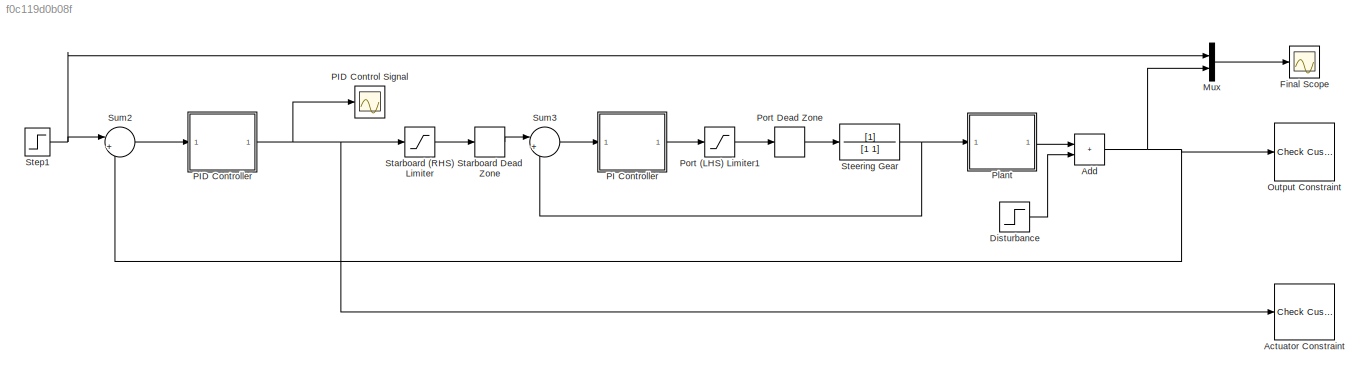
MODEL slx_f0c119d0b08f
KIND model
CONFIG AbsTol = auto
CONFIG EnableMultiTasking = off
CONFIG FixedStep = auto
CONFIG MaxStep = auto
CONFIG MinStep = auto
CONFIG RelTol = 1e-3
CONFIG SampleTimeConstraint = Unconstrained
CONFIG Solver = VariableStepAuto
CONFIG SolverName = VariableStepAuto
CONFIG StartTime = 0.0
CONFIG StopTime = 10.0
BLOCK [Reference] Actuator Constraint  REF=checkpacklib/Check Custom Bounds
  InstantiateOnLoad = on
  Ports = [1]
  SourceBlock = checkpacklib/Check Custom Bounds
  SourceProductBaseCode = CT,ID,MT,SO
  SourceType = Checks_CustomBounds
  StatePerturbationForJacobian = 1.0e-05
BLOCK [Sum] Add
  IconShape = rectangular
  Ports = [2, 1]
BLOCK [Step] Disturbance
BLOCK [Scope] Final Scope
  Floating = off
  NumInputPorts = 1
  Ports = [1]
  ScopeSpecificationString = Simulink.scopes.TimeScopeBlockCfg('CurrentConfiguration', extmgr.ConfigurationSet(extmgr.Configuration('Core','General UI',true),extmgr.Configuration('Core','Source UI',true),extmgr.Configuration('Sources','WiredSimulink',true,'DataLoggingSaveFormat','StructureWithTime','DataLoggingLimitDataPoints',true,'DataLoggingDecimation','1','DataLoggingDecimateData',true,'DataLoggingVariableName','ScopeData...<+929ch>
  StatePerturbationForJacobian = 1.0e-05
BLOCK [Mux] Mux
  DisplayOption = bar
  Inputs = 2
  Ports = [2, 1]
BLOCK [Reference] Output Constraint  REF=checkpacklib/Check Custom Bounds
  InstantiateOnLoad = on
  Ports = [1]
  SourceBlock = checkpacklib/Check Custom Bounds
  SourceProductBaseCode = CT,ID,MT,SO
  SourceType = Checks_CustomBounds
  StatePerturbationForJacobian = 1.0e-05
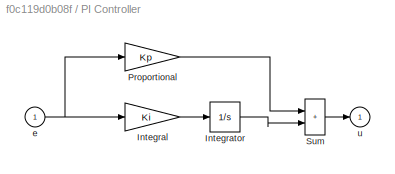
BLOCK [SubSystem] PI Controller
  Ports = [1, 1]
  RequestExecContextInheritance = off
  StatePerturbationForJacobian = 1.0e-05
BLOCK [Gain] PI Controller/Integral
  Gain = Ki
  OutDataTypeStr = Inherit: Same as input
  ParamDataTypeStr = Inherit: Same as input
  SaturateOnIntegerOverflow = on
  StatePerturbationForJacobian = 1.0e-05
BLOCK [Integrator] PI Controller/Integrator
  Ports = [1, 1]
  StatePerturbationForJacobian = 1.0e-05
BLOCK [Gain] PI Controller/Proportional
  Gain = Kp
  OutDataTypeStr = Inherit: Same as input
  ParamDataTypeStr = Inherit: Same as input
  SaturateOnIntegerOverflow = on
  StatePerturbationForJacobian = 1.0e-05
BLOCK [Sum] PI Controller/Sum
  IconShape = rectangular
  InputSameDT = on
  OutDataTypeStr = Inherit: Same as first input
  Ports = [2, 1]
  SaturateOnIntegerOverflow = on
  StatePerturbationForJacobian = 1.0e-05
BLOCK [Inport] PI Controller/e
  StatePerturbationForJacobian = 1.0e-05
BLOCK [Outport] PI Controller/u
  InitialOutput = 0
  StatePerturbationForJacobian = 1.0e-05
BLOCK [Scope] PID Control Signal
  Floating = off
  NameLocation = top
  NumInputPorts = 1
  Ports = [1]
  ScopeSpecificationString = Simulink.scopes.TimeScopeBlockCfg('CurrentConfiguration', extmgr.ConfigurationSet(extmgr.Configuration('Core','General UI',true),extmgr.Configuration('Core','Source UI',true),extmgr.Configuration('Sources','WiredSimulink',true,'DataLoggingLimitDataPoints',true,'DataLoggingSaveFormat','Array','DataLoggingDecimation','1','DataLoggingDecimateData',true),extmgr.Configuration('Visuals','Time Domain',tr...<+1661ch>
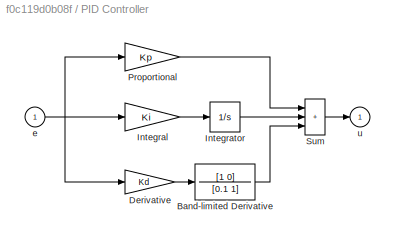
BLOCK [SubSystem] PID Controller
  Ports = [1, 1]
  RequestExecContextInheritance = off
  StatePerturbationForJacobian = 1.0e-05
BLOCK [TransferFcn] PID Controller/Band-limited Derivative
  Denominator = [0.1 1]
  Numerator = [1 0]
  StatePerturbationForJacobian = 1.0e-05
BLOCK [Gain] PID Controller/Derivative
  Gain = Kd
  OutDataTypeStr = Inherit: Same as input
  ParamDataTypeStr = Inherit: Same as input
  SaturateOnIntegerOverflow = on
  StatePerturbationForJacobian = 1.0e-05
BLOCK [Gain] PID Controller/Integral
  Gain = Ki
  OutDataTypeStr = Inherit: Same as input
  ParamDataTypeStr = Inherit: Same as input
  SaturateOnIntegerOverflow = on
  StatePerturbationForJacobian = 1.0e-05
BLOCK [Integrator] PID Controller/Integrator
  Ports = [1, 1]
  StatePerturbationForJacobian = 1.0e-05
BLOCK [Gain] PID Controller/Proportional
  Gain = Kp
  OutDataTypeStr = Inherit: Same as input
  ParamDataTypeStr = Inherit: Same as input
  SaturateOnIntegerOverflow = on
  StatePerturbationForJacobian = 1.0e-05
BLOCK [Sum] PID Controller/Sum
  IconShape = rectangular
  InputSameDT = on
  Inputs = +++
  OutDataTypeStr = Inherit: Same as first input
  Ports = [3, 1]
  SaturateOnIntegerOverflow = on
  StatePerturbationForJacobian = 1.0e-05
BLOCK [Inport] PID Controller/e
  StatePerturbationForJacobian = 1.0e-05
BLOCK [Outport] PID Controller/u
  InitialOutput = 0
  StatePerturbationForJacobian = 1.0e-05
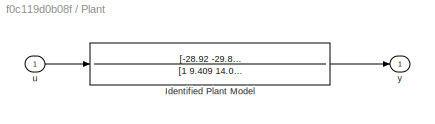
BLOCK [SubSystem] Plant
  Ports = [1, 1]
  RequestExecContextInheritance = off
  StatePerturbationForJacobian = 1.0e-05
BLOCK [TransferFcn] Plant/Identified Plant Model
  Denominator = [1 9.409 14.02 48.5 0.3979]
  Numerator = [-28.92 -29.81 -140.8]
  StatePerturbationForJacobian = 1.0e-05
BLOCK [Inport] Plant/u 
  StatePerturbationForJacobian = 1.0e-05
BLOCK [Outport] Plant/y
  InitialOutput = 0
  StatePerturbationForJacobian = 1.0e-05
BLOCK [Saturate] Port (LHS) Limiter1
BLOCK [DeadZone] Port Dead Zone
BLOCK [Saturate] Starboard (RHS) Limiter
BLOCK [DeadZone] Starboard Dead Zone
BLOCK [TransferFcn] Steering Gear
  Denominator = [1 1]
BLOCK [Step] Step1
  SampleTime = 0
  StatePerturbationForJacobian = 1.0e-05
  Time = 0.01
BLOCK [Sum] Sum2
  Inputs = |+-
  Ports = [2, 1]
  SaturateOnIntegerOverflow = on
  StatePerturbationForJacobian = 1.0e-05
BLOCK [Sum] Sum3
  Inputs = |+-
  Ports = [2, 1]
  SaturateOnIntegerOverflow = on
  StatePerturbationForJacobian = 1.0e-05
NET Add:1 -> Mux:2, Output Constraint:1, Sum2:2
LINE Disturbance:1 -> Add:2
LINE Mux:1 -> Final Scope:1
LINE PI Controller/Integral:1 -> PI Controller/Integrator:1
LINE PI Controller/Integrator:1 -> PI Controller/Sum:2
LINE PI Controller/Proportional:1 -> PI Controller/Sum:1
LINE PI Controller/Sum:1 -> PI Controller/u:1
NET PI Controller/e:1 -> PI Controller/Integral:1, PI Controller/Proportional:1
LINE PI Controller:1 -> Port (LHS) Limiter1:1
LINE PID Controller/Band-limited Derivative:1 -> PID Controller/Sum:3
LINE PID Controller/Derivative:1 -> PID Controller/Band-limited Derivative:1
LINE PID Controller/Integral:1 -> PID Controller/Integrator:1
LINE PID Controller/Integrator:1 -> PID Controller/Sum:2
LINE PID Controller/Proportional:1 -> PID Controller/Sum:1
LINE PID Controller/Sum:1 -> PID Controller/u:1
NET PID Controller/e:1 -> PID Controller/Derivative:1, PID Controller/Integral:1, PID Controller/Proportional:1
NET PID Controller:1 -> Actuator Constraint:1, PID Control Signal:1, Starboard (RHS) Limiter:1
LINE Plant/Identified Plant Model:1 -> Plant/y:1
LINE Plant/u :1 -> Plant/Identified Plant Model:1
LINE Plant:1 -> Add:1
LINE Port (LHS) Limiter1:1 -> Port Dead Zone:1
LINE Port Dead Zone:1 -> Steering Gear:1
LINE Starboard (RHS) Limiter:1 -> Starboard Dead Zone:1
LINE Starboard Dead Zone:1 -> Sum3:1
NET Steering Gear:1 -> Plant:1, Sum3:2
NET Step1:1 -> Mux:1, Sum2:1
LINE Sum2:1 -> PID Controller:1
LINE Sum3:1 -> PI Controller:1
note: NET lines group one-source signal fan-out (src -> all destinations, sorted); 1:1 wires keep LINE
